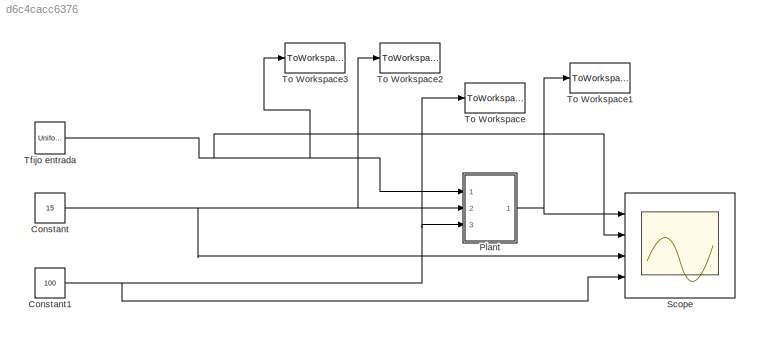
MODEL slx_d6c4cacc6376
KIND model
CONFIG AbsTol = auto
CONFIG FixedStep = auto
CONFIG MaxStep = auto
CONFIG MinStep = auto
CONFIG RelTol = 1e-3
CONFIG SampleTimeConstraint = Unconstrained
CONFIG Solver = VariableStepAuto
CONFIG SolverMode = Auto
CONFIG SolverName = VariableStepAuto
CONFIG StartTime = 0.0
CONFIG StopTime = 1500
BLOCK [Constant] Constant
  Value = 15
BLOCK [Constant] Constant1
  Value = 100
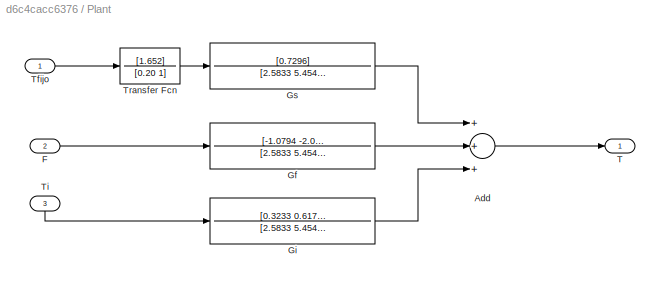
BLOCK [SubSystem] Plant
  Ports = [3, 1]
  RequestExecContextInheritance = off
  Variant = off
BLOCK [Sum] Plant/Add
  InputSameDT = off
  Inputs = +++
  OutDataTypeStr = Inherit: Inherit via internal rule
  Ports = [3, 1]
  SaturateOnIntegerOverflow = off
BLOCK [Inport] Plant/F
  IconDisplay = Port number
  Port = 2
BLOCK [TransferFcn] Plant/Gf
  Denominator = [2.5833 5.4540 0.6170]
  Numerator = [-1.0794 -2.0600]
BLOCK [TransferFcn] Plant/Gi
  Denominator = [2.5833 5.4540  0.6170]
  Numerator = [0.3233 0.6170]
BLOCK [TransferFcn] Plant/Gs
  Denominator = [2.5833 5.4540  0.6170]
  Numerator = [0.7296]
BLOCK [Outport] Plant/T
  IconDisplay = Port number
BLOCK [Inport] Plant/Tfijo
  IconDisplay = Port number
BLOCK [Inport] Plant/Ti
  IconDisplay = Port number
  Port = 3
BLOCK [TransferFcn] Plant/Transfer Fcn
  Denominator = [0.20 1]
  Numerator = [1.652]
BLOCK [Scope] Scope
  NumInputPorts = 4
  Ports = [4]
  ScopeSpecificationString = Simulink.scopes.TimeScopeBlockCfg('CurrentConfiguration', extmgr.ConfigurationSet(extmgr.Configuration('Core','General UI',true),extmgr.Configuration('Core','Source UI',true),extmgr.Configuration('Sources','WiredSimulink',true),extmgr.Configuration('Visuals','Time Domain',true,'SerializedDisplays',{struct('MinYLimReal','-47.10674','MaxYLimReal','423.96068','YLabelReal','','MinYLimMag','0.00000','M...<+1451ch>
BLOCK [UniformRandomNumber] Tfijo entrada
  Maximum = 170
  Minimum = 130
  SampleTime = ts
BLOCK [ToWorkspace] To Workspace
  FixptAsFi = on
  MaxDataPoints = inf
  Ports = [1]
  SampleTime = tm
  Save2DSignal = 3-D array (concatenate along third dimension)
  VariableName = Ti
BLOCK [ToWorkspace] To Workspace1
  FixptAsFi = on
  MaxDataPoints = inf
  Ports = [1]
  SampleTime = tm
  Save2DSignal = 3-D array (concatenate along third dimension)
  VariableName = T
BLOCK [ToWorkspace] To Workspace2
  FixptAsFi = on
  MaxDataPoints = inf
  Ports = [1]
  SampleTime = tm
  Save2DSignal = 3-D array (concatenate along third dimension)
  VariableName = F
BLOCK [ToWorkspace] To Workspace3
  FixptAsFi = on
  MaxDataPoints = inf
  Ports = [1]
  SampleTime = tm
  Save2DSignal = 3-D array (concatenate along third dimension)
  VariableName = Tf
NET Constant1:1 -> Plant:3, Scope:4, To Workspace:1
NET Constant:1 -> Plant:2, Scope:3, To Workspace2:1
LINE Plant/Add:1 -> Plant/T:1
LINE Plant/F:1 -> Plant/Gf:1
LINE Plant/Gf:1 -> Plant/Add:2
LINE Plant/Gi:1 -> Plant/Add:3
LINE Plant/Gs:1 -> Plant/Add:1
LINE Plant/Tfijo:1 -> Plant/Transfer Fcn:1
LINE Plant/Ti:1 -> Plant/Gi:1
LINE Plant/Transfer Fcn:1 -> Plant/Gs:1
NET Plant:1 -> Scope:1, To Workspace1:1
NET Tfijo entrada:1 -> Plant:1, Scope:2, To Workspace3:1
note: NET lines group one-source signal fan-out (src -> all destinations, sorted); 1:1 wires keep LINE
